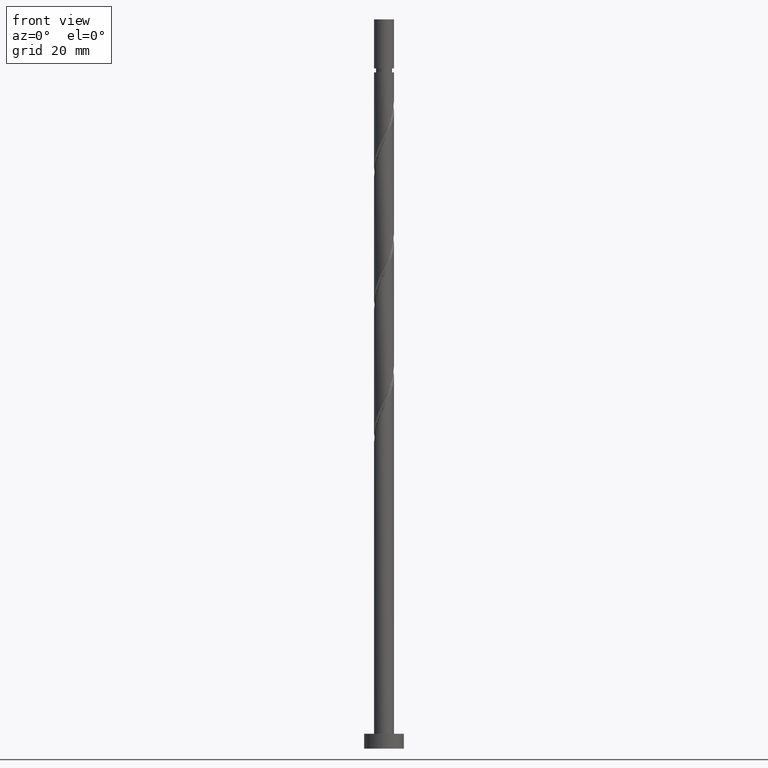
[diagram: clean part render]
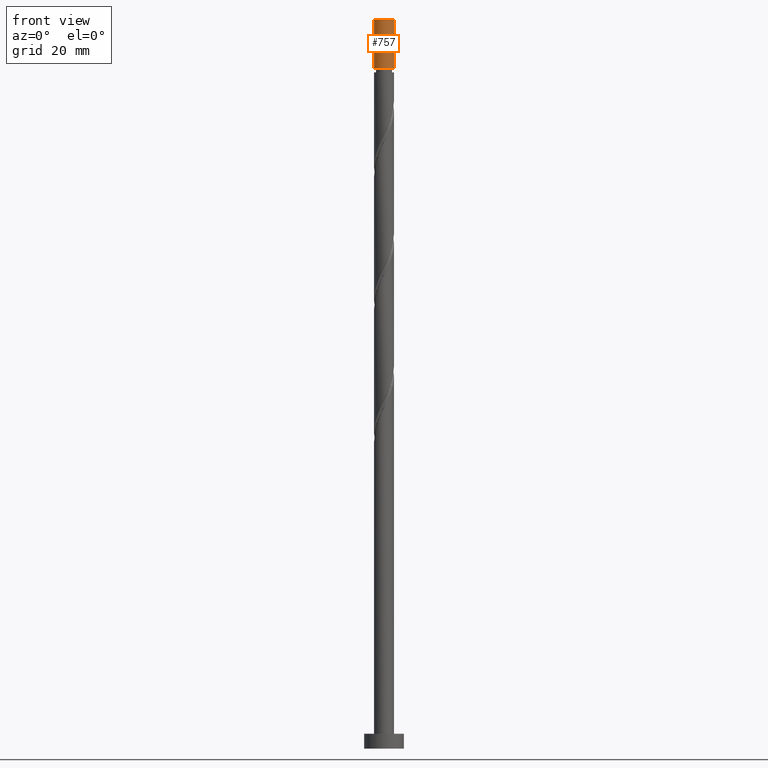
[diagram: same view with one face highlighted and labeled with its STEP entity id]
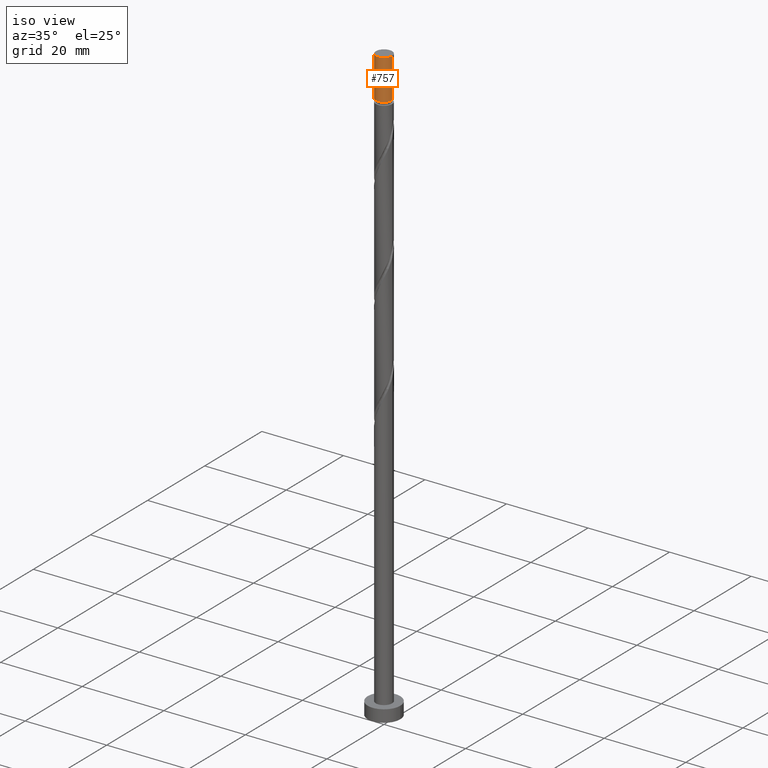
[diagram: same view with one face highlighted and labeled with its STEP entity id]
A machine part, front view. The second image highlights one B-rep face of the part: STEP entity #757.
A second angle (iso view) of the same face is appended — the face is thin or edge-on in the first view.
In plain terms, the highlighted cylindrical surface (edge-blend (fillet) strip) has radius 2 mm, axis along (-0, -0, -1).
Its self-contained STEP definition (entity closure, byte-faithful):
#75 = AXIS2_PLACEMENT_3D ( 'NONE', #720, #1243, #702 ) ;
#167 = EDGE_LOOP ( 'NONE', ( #1371, #795, #476, #1561 ) ) ;
#176 = LINE ( 'NONE', #955, #1027 ) ;
#211 = CIRCLE ( 'NONE', #678, 2.000000000000000000 ) ;
#213 = EDGE_CURVE ( 'NONE', #982, #1447, #176, .T. ) ;
#221 = CYLINDRICAL_SURFACE ( 'NONE', #75, 2.000000000000000000 ) ;
#353 = DIRECTION ( 'NONE',  ( 1.000000000000000000, 0.000000000000000000, 0.000000000000000000 ) ) ;
#386 = EDGE_CURVE ( 'NONE', #1447, #525, #1331, .T. ) ;
#388 = VECTOR ( 'NONE', #949, 1000.000000000000000 ) ;
#476 = ORIENTED_EDGE ( 'NONE', *, *, #1206, .T. ) ;
#525 = VERTEX_POINT ( 'NONE', #1187 ) ;
#678 = AXIS2_PLACEMENT_3D ( 'NONE', #1237, #831, #353 ) ;
#702 = DIRECTION ( 'NONE',  ( -1.000000000000000000, 0.000000000000000000, 0.000000000000000000 ) ) ;
#720 = CARTESIAN_POINT ( 'NONE',  ( 0.000000000000000000, 0.000000000000000000, 146.5000000000000000 ) ) ;
#730 = EDGE_CURVE ( 'NONE', #1636, #982, #211, .T. ) ;
#757 = ADVANCED_FACE ( 'NONE', ( #1473 ), #221, .T. ) ;
#795 = ORIENTED_EDGE ( 'NONE', *, *, #730, .F. ) ;
#831 = DIRECTION ( 'NONE',  ( 0.000000000000000000, 0.000000000000000000, 1.000000000000000000 ) ) ;
#892 = CARTESIAN_POINT ( 'NONE',  ( 0.000000000000000000, 0.000000000000000000, 136.6437823815381876 ) ) ;
#945 = DIRECTION ( 'NONE',  ( -0.000000000000000000, -0.000000000000000000, -1.000000000000000000 ) ) ;
#949 = DIRECTION ( 'NONE',  ( -0.000000000000000000, -0.000000000000000000, -1.000000000000000000 ) ) ;
#955 = CARTESIAN_POINT ( 'NONE',  ( 2.000000000000000000, 2.449293598294706414E-16, 146.5000000000000000 ) ) ;
#982 = VERTEX_POINT ( 'NONE', #1534 ) ;
#1027 = VECTOR ( 'NONE', #945, 1000.000000000000000 ) ;
#1051 = CARTESIAN_POINT ( 'NONE',  ( -2.000000000000000000, 0.000000000000000000, 146.5000000000000000 ) ) ;
#1119 = DIRECTION ( 'NONE',  ( -0.000000000000000000, -0.000000000000000000, -1.000000000000000000 ) ) ;
#1187 = CARTESIAN_POINT ( 'NONE',  ( -1.999999999999995781, 0.000000000000000000, 136.6437823815381876 ) ) ;
#1196 = AXIS2_PLACEMENT_3D ( 'NONE', #892, #1119, #1375 ) ;
#1206 = EDGE_CURVE ( 'NONE', #1636, #525, #1577, .T. ) ;
#1212 = CARTESIAN_POINT ( 'NONE',  ( -2.000000000000000000, 0.000000000000000000, 146.5000000000000000 ) ) ;
#1223 = CARTESIAN_POINT ( 'NONE',  ( 1.999999999999995781, 2.449293598294703456E-16, 136.6437823815381876 ) ) ;
#1237 = CARTESIAN_POINT ( 'NONE',  ( 0.000000000000000000, 0.000000000000000000, 146.5000000000000000 ) ) ;
#1243 = DIRECTION ( 'NONE',  ( -0.000000000000000000, -0.000000000000000000, -1.000000000000000000 ) ) ;
#1331 = CIRCLE ( 'NONE', #1196, 1.999999999999995781 ) ;
#1371 = ORIENTED_EDGE ( 'NONE', *, *, #213, .F. ) ;
#1375 = DIRECTION ( 'NONE',  ( -1.000000000000000000, 0.000000000000000000, 0.000000000000000000 ) ) ;
#1447 = VERTEX_POINT ( 'NONE', #1223 ) ;
#1473 = FACE_OUTER_BOUND ( 'NONE', #167, .T. ) ;
#1534 = CARTESIAN_POINT ( 'NONE',  ( 2.000000000000000000, 2.449293598294706414E-16, 146.5000000000000000 ) ) ;
#1561 = ORIENTED_EDGE ( 'NONE', *, *, #386, .F. ) ;
#1577 = LINE ( 'NONE', #1212, #388 ) ;
#1636 = VERTEX_POINT ( 'NONE', #1051 ) ;